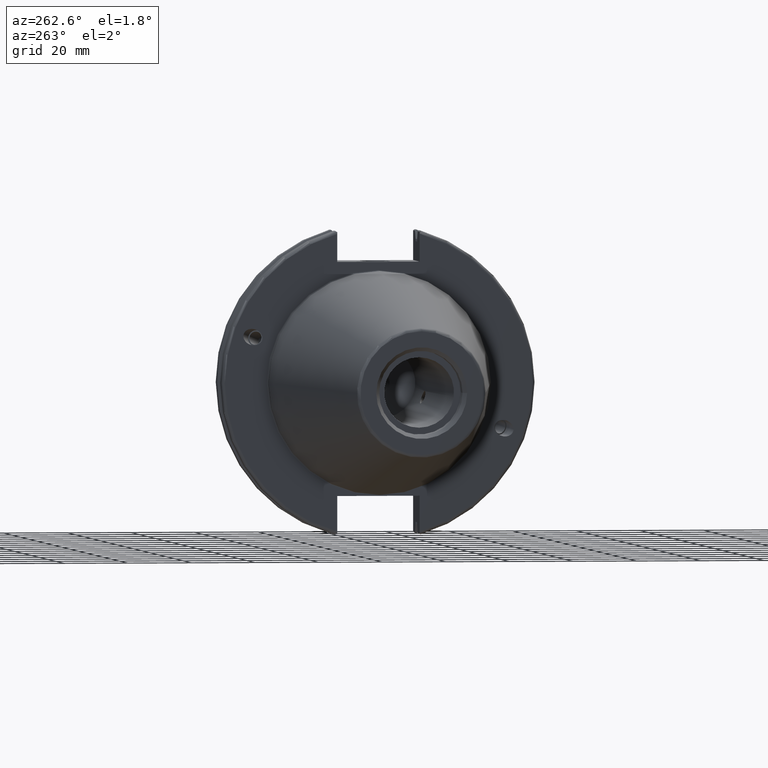
[diagram: clean part render]
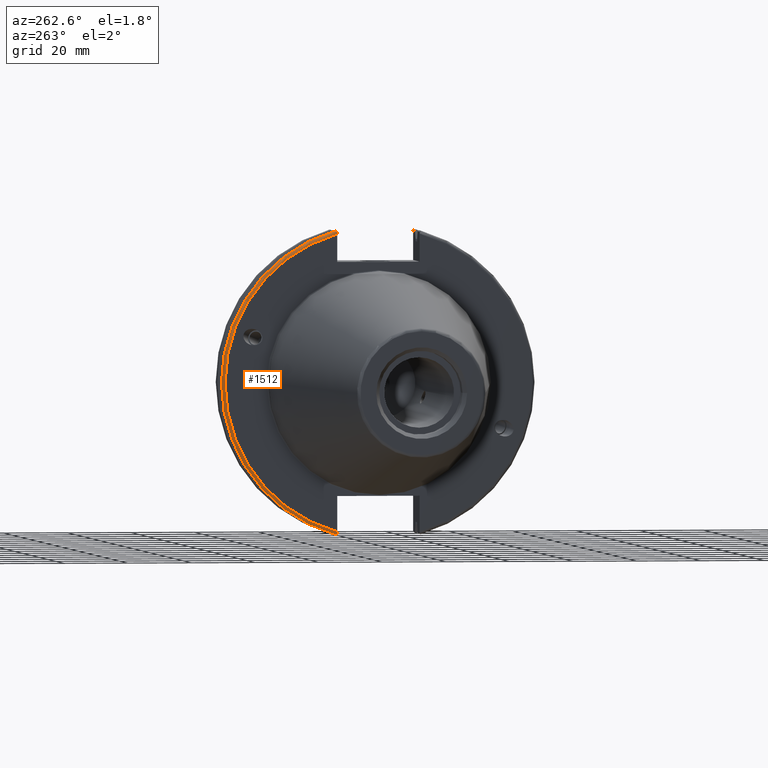
[diagram: same view with one face highlighted and labeled with its STEP entity id]
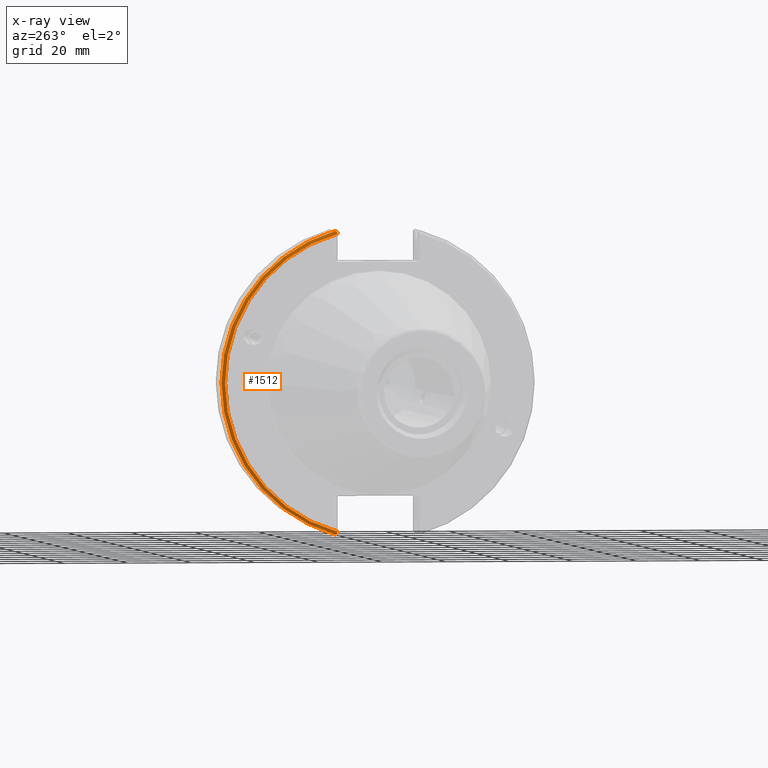
[diagram: x-ray of the same camera — body ghosted, the highlighted face saturated]
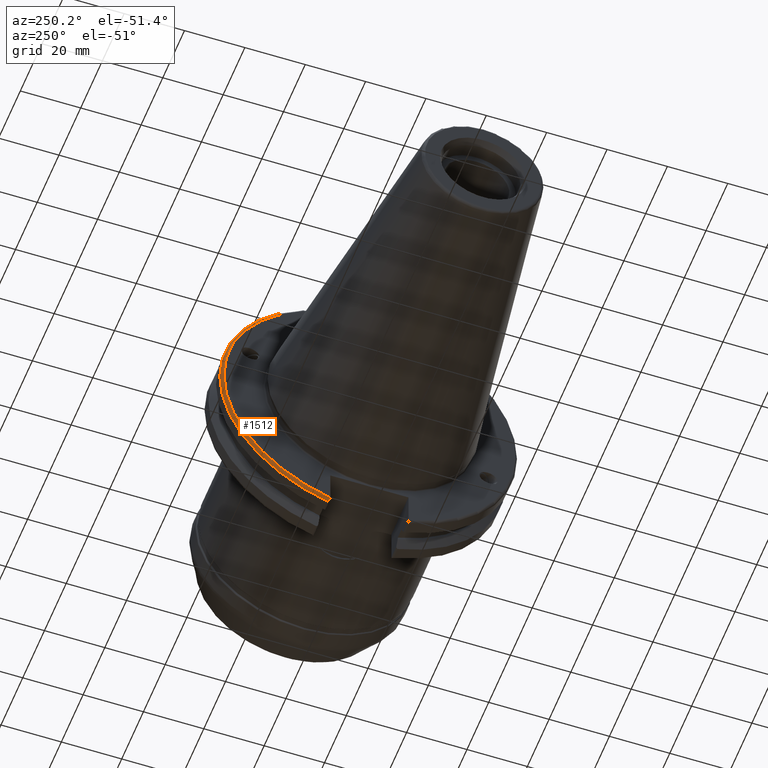
[diagram: same view with one face highlighted and labeled with its STEP entity id]
A machine part, auxiliary view. The second image highlights one B-rep face of the part: STEP entity #1512.
The next image is the same camera in x-ray: the body ghosted, the highlighted face saturated — about 0% of this face is hidden behind the body in this view.
A second angle (auxiliary view) of the same face is appended — the face is thin or edge-on in the first view.
In plain terms, the highlighted toroidal blend (fillet) surface has major radius 48.2125 mm and minor (blend) radius 1 mm.
Its self-contained STEP definition (entity closure, byte-faithful):
#108=B_SPLINE_CURVE_WITH_KNOTS('',3,(#2678,#2679,#2680,#2681,#2682,#2683),
 .UNSPECIFIED.,.F.,.F.,(4,2,4),(0.452859340315923,0.491741138916218,0.506051994111224),
 .UNSPECIFIED.);
#117=B_SPLINE_CURVE_WITH_KNOTS('',3,(#2805,#2806,#2807,#2808,#2809,#2810,
#2811,#2812),.UNSPECIFIED.,.F.,.F.,(4,2,2,4),(-0.104075769062722,-0.0730268503455479,
-0.0343639873656265,0.),.UNSPECIFIED.);
#118=B_SPLINE_CURVE_WITH_KNOTS('',3,(#2816,#2817,#2818,#2819,#2820,#2821,
#2822,#2823),.UNSPECIFIED.,.F.,.F.,(4,2,2,4),(0.,0.0343639873656266,0.0730268503455482,
0.104075769062722),.UNSPECIFIED.);
#119=B_SPLINE_CURVE_WITH_KNOTS('',3,(#2824,#2825,#2826,#2827,#2828,#2829),
 .UNSPECIFIED.,.F.,.F.,(4,2,4),(0.0976892167532858,0.112000071948292,0.150881870548587),
 .UNSPECIFIED.);
#131=TOROIDAL_SURFACE('',#1708,48.2125,1.);
#202=FACE_OUTER_BOUND('',#303,.T.);
#303=EDGE_LOOP('',(#1274,#1275,#1276,#1277,#1278,#1279));
#562=CIRCLE('',#1694,48.2125);
#567=CIRCLE('',#1709,49.2125);
#678=VERTEX_POINT('',#2612);
#679=VERTEX_POINT('',#2614);
#693=VERTEX_POINT('',#2676);
#716=VERTEX_POINT('',#2804);
#717=VERTEX_POINT('',#2813);
#718=VERTEX_POINT('',#2815);
#868=EDGE_CURVE('',#679,#678,#562,.T.);
#886=EDGE_CURVE('',#678,#693,#108,.T.);
#918=EDGE_CURVE('',#693,#716,#117,.T.);
#919=EDGE_CURVE('',#716,#717,#567,.T.);
#920=EDGE_CURVE('',#717,#718,#118,.T.);
#921=EDGE_CURVE('',#718,#679,#119,.T.);
#1274=ORIENTED_EDGE('',*,*,#918,.T.);
#1275=ORIENTED_EDGE('',*,*,#919,.T.);
#1276=ORIENTED_EDGE('',*,*,#920,.T.);
#1277=ORIENTED_EDGE('',*,*,#921,.T.);
#1278=ORIENTED_EDGE('',*,*,#868,.T.);
#1279=ORIENTED_EDGE('',*,*,#886,.T.);
#1512=ADVANCED_FACE('',(#202),#131,.T.);
#1694=AXIS2_PLACEMENT_3D('',#2615,#2057,#2058);
#1708=AXIS2_PLACEMENT_3D('',#2803,#2109,#2110);
#1709=AXIS2_PLACEMENT_3D('',#2814,#2111,#2112);
#2057=DIRECTION('center_axis',(1.,0.,0.));
#2058=DIRECTION('ref_axis',(0.,1.,-6.12323399573677E-17));
#2109=DIRECTION('center_axis',(1.,0.,0.));
#2110=DIRECTION('ref_axis',(0.,0.,-1.));
#2111=DIRECTION('center_axis',(-1.,0.,0.));
#2112=DIRECTION('ref_axis',(0.,1.,-6.12323399573677E-17));
#2612=CARTESIAN_POINT('',(3.175,12.95,46.4407434937254));
#2614=CARTESIAN_POINT('',(3.175,12.95,-46.4407434937254));
#2615=CARTESIAN_POINT('Origin',(3.175,0.,0.));
#2676=CARTESIAN_POINT('',(3.31949794294344,12.95,46.9780755322918));
#2678=CARTESIAN_POINT('Ctrl Pts',(3.175,12.95,46.4407434937254));
#2679=CARTESIAN_POINT('Ctrl Pts',(3.175,12.95,46.5703494890597));
#2680=CARTESIAN_POINT('Ctrl Pts',(3.20453530071253,12.95,46.7230464903732));
#2681=CARTESIAN_POINT('Ctrl Pts',(3.27115672912336,12.95,46.887363294568));
#2682=CARTESIAN_POINT('Ctrl Pts',(3.29341556483839,12.95,46.9333752207329));
#2683=CARTESIAN_POINT('Ctrl Pts',(3.31949794294344,12.95,46.9780755322918));
#2803=CARTESIAN_POINT('Origin',(4.175,0.,0.));
#2804=CARTESIAN_POINT('',(4.175,13.4317035994433,47.3440544806494));
#2805=CARTESIAN_POINT('Ctrl Pts',(3.31949794294344,12.95,46.9780755322918));
#2806=CARTESIAN_POINT('Ctrl Pts',(3.36785032278754,13.0300321736484,47.0388807469102));
#2807=CARTESIAN_POINT('Ctrl Pts',(3.43235971798504,13.1083611826073,47.0983919657547));
#2808=CARTESIAN_POINT('Ctrl Pts',(3.58507512107923,13.2478194810695,47.2043467509586));
#2809=CARTESIAN_POINT('Ctrl Pts',(3.70638116490965,13.3242014686233,47.2623787015413));
#2810=CARTESIAN_POINT('Ctrl Pts',(3.92661103245834,13.4067722493645,47.3251126473446));
#2811=CARTESIAN_POINT('Ctrl Pts',(4.06045337544791,13.4317035994433,47.3440544806494));
#2812=CARTESIAN_POINT('Ctrl Pts',(4.175,13.4317035994433,47.3440544806494));
#2813=CARTESIAN_POINT('',(4.175,13.4317035994433,-47.3440544806494));
#2814=CARTESIAN_POINT('Origin',(4.175,0.,0.));
#2815=CARTESIAN_POINT('',(3.31949794294344,12.95,-46.9780755322918));
#2816=CARTESIAN_POINT('Ctrl Pts',(4.175,13.4317035994433,-47.3440544806494));
#2817=CARTESIAN_POINT('Ctrl Pts',(4.06045337544791,13.4317035994433,-47.3440544806494));
#2818=CARTESIAN_POINT('Ctrl Pts',(3.92661103245834,13.4067722493645,-47.3251126473446));
#2819=CARTESIAN_POINT('Ctrl Pts',(3.70638116490964,13.3242014686232,-47.2623787015413));
#2820=CARTESIAN_POINT('Ctrl Pts',(3.58507512107923,13.2478194810695,-47.2043467509586));
#2821=CARTESIAN_POINT('Ctrl Pts',(3.43235971798504,13.1083611826073,-47.0983919657547));
#2822=CARTESIAN_POINT('Ctrl Pts',(3.36785032278754,13.0300321736484,-47.0388807469102));
#2823=CARTESIAN_POINT('Ctrl Pts',(3.31949794294344,12.95,-46.9780755322918));
#2824=CARTESIAN_POINT('Ctrl Pts',(3.31949794294344,12.95,-46.9780755322918));
#2825=CARTESIAN_POINT('Ctrl Pts',(3.29341556483839,12.95,-46.9333752207329));
#2826=CARTESIAN_POINT('Ctrl Pts',(3.27115672912336,12.95,-46.887363294568));
#2827=CARTESIAN_POINT('Ctrl Pts',(3.20453530071253,12.95,-46.7230464903732));
#2828=CARTESIAN_POINT('Ctrl Pts',(3.175,12.95,-46.5703494890597));
#2829=CARTESIAN_POINT('Ctrl Pts',(3.175,12.95,-46.4407434937254));